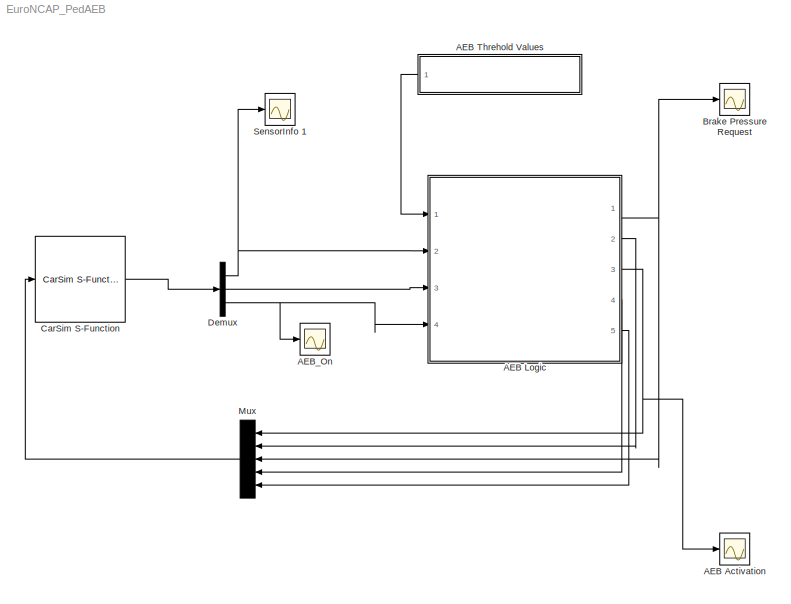
MODEL EuroNCAP_PedAEB
KIND model
BLOCK [Scope] AEB Activation
  Floating = off
  NumInputPorts = 1
  Ports = [1]
  SID = 30
  ScopeSpecificationString = Simulink.scopes.TimeScopeBlockCfg('CurrentConfiguration', extmgr.ConfigurationSet(extmgr.Configuration('Core','General UI',true),extmgr.Configuration('Core','Source UI',true),extmgr.Configuration('Sources','WiredSimulink',true,'DataLoggingVariableName','ScopeData6'),extmgr.Configuration('Visuals','Time Domain',true,'SerializedDisplays',{struct('MinYLimReal','-0.06941','MaxYLimReal','1.10847','YLab...<+1433ch>
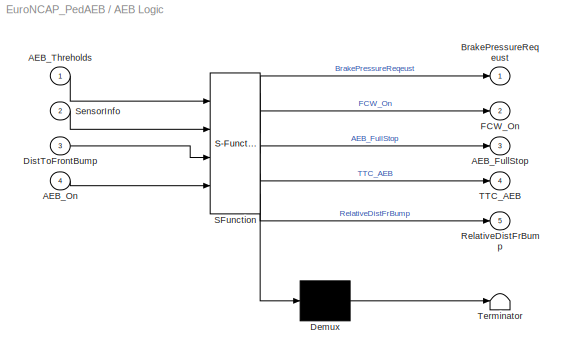
BLOCK [SubSystem] AEB Logic
  ErrorFcn = Stateflow.Translate.translate
  PermitHierarchicalResolution = ExplicitOnly
  Ports = [4, 5]
  RequestExecContextInheritance = off
  SFBlockType = MATLAB Function
  SID = 12
  TreatAsAtomicUnit = on
BLOCK [Demux] AEB Logic/ Demux 
  Outputs = 1
  Ports = [1, 1]
  SID = 12::20
BLOCK [S-Function] AEB Logic/ SFunction 
  EnableBusSupport = on
  FunctionName = sf_sfun
  PortCounts = [4 6]
  Ports = [4, 6]
  SFcnIsStateOwnerBlock = off
  SFunctionDeploymentMode = off
  SID = 12::19
  Tag = Stateflow S-Function 2
BLOCK [Terminator] AEB Logic/ Terminator 
  SID = 12::21
BLOCK [Outport] AEB Logic/AEB_FullStop
  IconDisplay = Port number
  Port = 3
  SID = 12::25
BLOCK [Inport] AEB Logic/AEB_On
  IconDisplay = Port number
  Port = 4
  SID = 12::26
BLOCK [Inport] AEB Logic/AEB_Threholds
  IconDisplay = Port number
  SID = 12::1
BLOCK [Outport] AEB Logic/BrakePressureReqeust
  IconDisplay = Port number
  SID = 12::5
BLOCK [Inport] AEB Logic/DistToFrontBump
  IconDisplay = Port number
  Port = 3
  SID = 12::24
BLOCK [Outport] AEB Logic/FCW_On
  IconDisplay = Port number
  Port = 2
  SID = 12::22
BLOCK [Outport] AEB Logic/RelativeDistFrBump
  IconDisplay = Port number
  Port = 5
  SID = 12::28
BLOCK [Inport] AEB Logic/SensorInfo
  IconDisplay = Port number
  Port = 2
  SID = 12::23
BLOCK [Outport] AEB Logic/TTC_AEB
  IconDisplay = Port number
  Port = 4
  SID = 12::27
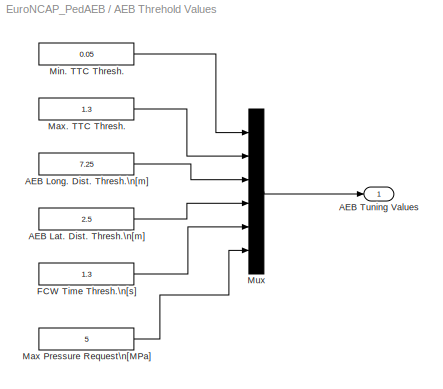
BLOCK [SubSystem] AEB Threhold Values
  Ports = [0, 1]
  RequestExecContextInheritance = off
  SID = 7
BLOCK [Constant] AEB Threhold Values/AEB Lat. Dist. Thresh.\n[m]
  SID = 6
  Value = 2.5
BLOCK [Constant] AEB Threhold Values/AEB Long. Dist. Thresh.\n[m]
  SID = 5
  Value = 7.25
BLOCK [Outport] AEB Threhold Values/AEB Tuning Values
  IconDisplay = Port number
  SID = 14
BLOCK [Constant] AEB Threhold Values/FCW Time Thresh.\n[s]
  SID = 4
  Value = 1.3
BLOCK [Constant] AEB Threhold Values/Max Pressure Request\n[MPa]
  SID = 20
  Value = 5
BLOCK [Constant] AEB Threhold Values/Max. TTC Thresh.
  SID = 2
  Value = 1.3
BLOCK [Constant] AEB Threhold Values/Min. TTC Thresh.
  SID = 19
  Value = 0.05
BLOCK [Mux] AEB Threhold Values/Mux
  DisplayOption = bar
  Inputs = 6
  Ports = [6, 1]
  SID = 13
BLOCK [Scope] AEB_On
  Floating = off
  NumInputPorts = 1
  Ports = [1]
  SID = 23
  ScopeSpecificationString = Simulink.scopes.TimeScopeBlockCfg('CurrentConfiguration', extmgr.ConfigurationSet(extmgr.Configuration('Core','General UI',true),extmgr.Configuration('Core','Source UI',true),extmgr.Configuration('Sources','WiredSimulink',true),extmgr.Configuration('Visuals','Time Domain',true,'SerializedDisplays',{struct('MinYLimReal','-0.125','MaxYLimReal','1.125','YLabelReal','','MinYLimMag','0.00000','MaxYLimM...<+1362ch>
BLOCK [Scope] Brake Pressure Request
  Floating = off
  NumInputPorts = 1
  Ports = [1]
  SID = 29
  ScopeSpecificationString = Simulink.scopes.TimeScopeBlockCfg('CurrentConfiguration', extmgr.ConfigurationSet(extmgr.Configuration('Core','General UI',true),extmgr.Configuration('Core','Source UI',true),extmgr.Configuration('Sources','WiredSimulink',true,'DataLoggingVariableName','ScopeData5'),extmgr.Configuration('Visuals','Time Domain',true,'SerializedDisplays',{struct('MinYLimReal','-0.625','MaxYLimReal','5.625','YLabelRe...<+1403ch>
BLOCK [Reference] CarSim S-Function  REF=Solver_SF/CarSim S-Function
  MultiThreadCoSim = auto
  Ports = [1, 1]
  Priority = 1
  Run_RTs = off
  SID = 1
  SIMFILE = simfile.sim
  SourceBlock = Solver_SF/CarSim S-Function
  SourceProductName = CarSim S-Function
  SourceType = Vehicle math model library
  StopMode_ind = Vehicle Model
  vs_state_ind = Run
BLOCK [Demux] Demux
  DisplayOption = bar
  Outputs = [4 1 1]
  Ports = [1, 3]
  SID = 22
BLOCK [Mux] Mux
  DisplayOption = bar
  Inputs = 5
  Ports = [5, 1]
  SID = 17
BLOCK [Scope] SensorInfo 1
  Floating = off
  NumInputPorts = 1
  Ports = [1]
  SID = 24
  ScopeSpecificationString = Simulink.scopes.TimeScopeBlockCfg('CurrentConfiguration', extmgr.ConfigurationSet(extmgr.Configuration('Core','General UI',true),extmgr.Configuration('Core','Source UI',true),extmgr.Configuration('Sources','WiredSimulink',true,'DataLoggingVariableName','ScopeData1'),extmgr.Configuration('Visuals','Time Domain',true,'SerializedDisplays',{struct('MinYLimReal','-23.16129','MaxYLimReal','56.83871','YL...<+1437ch>
LINE AEB Logic/ Demux :1 -> AEB Logic/ Terminator :1
LINE AEB Logic/ SFunction :1 -> AEB Logic/ Demux :1
LINE AEB Logic/ SFunction :2 -> AEB Logic/BrakePressureReqeust:1
LINE AEB Logic/ SFunction :3 -> AEB Logic/FCW_On:1
LINE AEB Logic/ SFunction :4 -> AEB Logic/AEB_FullStop:1
LINE AEB Logic/ SFunction :5 -> AEB Logic/TTC_AEB:1
LINE AEB Logic/ SFunction :6 -> AEB Logic/RelativeDistFrBump:1
LINE AEB Logic/AEB_On:1 -> AEB Logic/ SFunction :4
LINE AEB Logic/AEB_Threholds:1 -> AEB Logic/ SFunction :1
LINE AEB Logic/DistToFrontBump:1 -> AEB Logic/ SFunction :3
LINE AEB Logic/SensorInfo:1 -> AEB Logic/ SFunction :2
NET AEB Logic:1 -> Brake Pressure Request:1, Mux:3
LINE AEB Logic:2 -> Mux:2
NET AEB Logic:3 -> AEB Activation:1, Mux:1
LINE AEB Logic:4 -> Mux:4
LINE AEB Logic:5 -> Mux:5
LINE AEB Threhold Values/AEB Lat. Dist. Thresh.\n[m]:1 -> AEB Threhold Values/Mux:4
LINE AEB Threhold Values/AEB Long. Dist. Thresh.\n[m]:1 -> AEB Threhold Values/Mux:3
LINE AEB Threhold Values/FCW Time Thresh.\n[s]:1 -> AEB Threhold Values/Mux:5
LINE AEB Threhold Values/Max Pressure Request\n[MPa]:1 -> AEB Threhold Values/Mux:6
LINE AEB Threhold Values/Max. TTC Thresh.:1 -> AEB Threhold Values/Mux:2
LINE AEB Threhold Values/Min. TTC Thresh.:1 -> AEB Threhold Values/Mux:1
LINE AEB Threhold Values/Mux:1 -> AEB Threhold Values/AEB Tuning Values:1
LINE AEB Threhold Values:1 -> AEB Logic:1
LINE CarSim S-Function:1 -> Demux:1
NET Demux:1 -> AEB Logic:2, SensorInfo 1:1
LINE Demux:2 -> AEB Logic:3
NET Demux:3 -> AEB Logic:4, AEB_On:1
LINE Mux:1 -> CarSim S-Function:1
note: NET lines group one-source signal fan-out (src -> all destinations, sorted); 1:1 wires keep LINE
CHART AEB Logic states=1 transitions=1
  STATE_LABEL 'eML_blk_kernel()'
